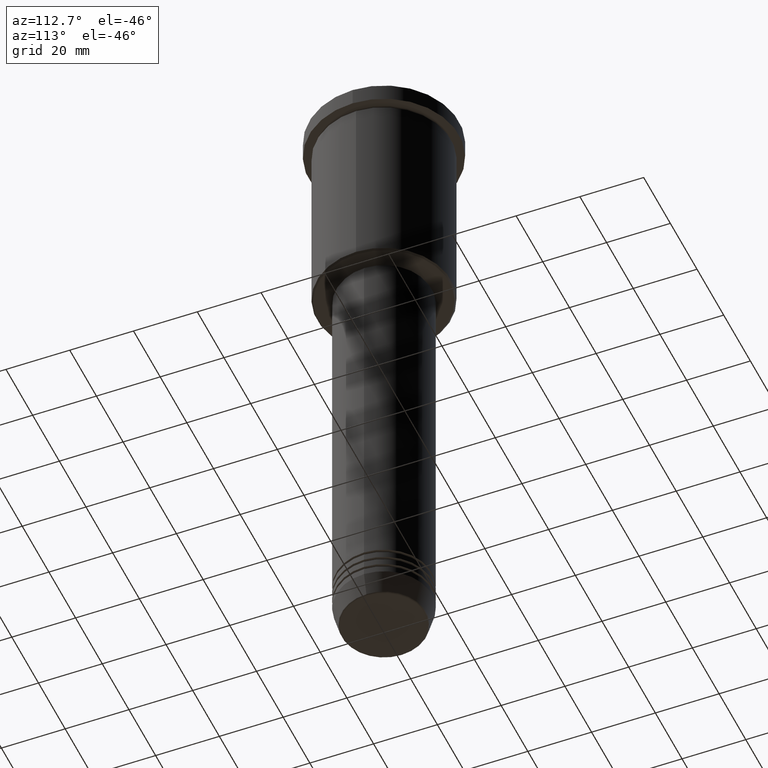
[diagram: clean part render]
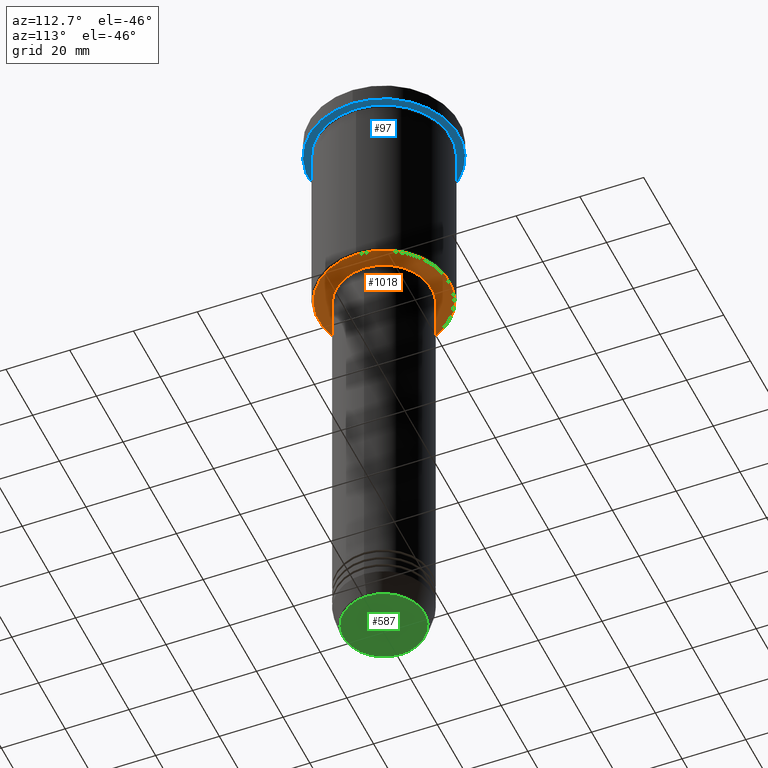
[diagram: same view with three faces highlighted in distinct colors, each labeled with its STEP entity id]
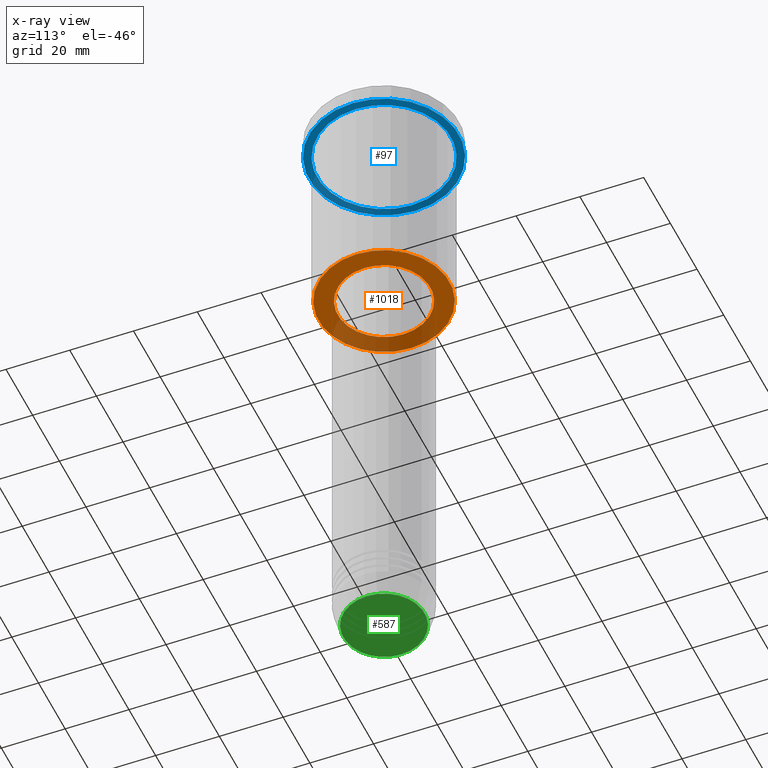
[diagram: x-ray of the same camera — body ghosted, the three highlighted faces saturated]
A machine part, auxiliary view with three faces highlighted in distinct colors.
The next image is the same camera in x-ray (body ghosted, the three faces saturated) — at least one of them is partly hidden behind the body in this view.
Their STEP definitions:

[orange] entity #1018 — the highlighted planar face has unit normal (0, 0, -1).
#48 = CIRCLE ( 'NONE', #907, 14.49999999999999822 ) ;
#68 = DIRECTION ( 'NONE',  ( 0.000000000000000000, 0.000000000000000000, -1.000000000000000000 ) ) ;
#74 = DIRECTION ( 'NONE',  ( 1.000000000000000000, 0.000000000000000000, 0.000000000000000000 ) ) ;
#82 = FACE_OUTER_BOUND ( 'NONE', #855, .T. ) ;
#87 = FACE_BOUND ( 'NONE', #1006, .T. ) ;
#143 = AXIS2_PLACEMENT_3D ( 'NONE', #1072, #900, #990 ) ;
#150 = EDGE_CURVE ( 'NONE', #1008, #1088, #508, .T. ) ;
#191 = DIRECTION ( 'NONE',  ( -0.000000000000000000, -0.000000000000000000, 1.000000000000000000 ) ) ;
#258 = CARTESIAN_POINT ( 'NONE',  ( 0.000000000000000000, 0.000000000000000000, -66.00000000000001421 ) ) ;
#271 = CARTESIAN_POINT ( 'NONE',  ( 20.49999999999996447, 0.000000000000000000, -66.00000000000001421 ) ) ;
#348 = DIRECTION ( 'NONE',  ( -1.000000000000000000, 0.000000000000000000, -0.000000000000000000 ) ) ;
#352 = PLANE ( 'NONE',  #1115 ) ;
#358 = ORIENTED_EDGE ( 'NONE', *, *, #462, .T. ) ;
#392 = ORIENTED_EDGE ( 'NONE', *, *, #1045, .T. ) ;
#417 = CIRCLE ( 'NONE', #143, 20.49999999999996447 ) ;
#462 = EDGE_CURVE ( 'NONE', #633, #1023, #961, .T. ) ;
#508 = CIRCLE ( 'NONE', #1050, 14.49999999999999822 ) ;
#538 = CARTESIAN_POINT ( 'NONE',  ( 0.000000000000000000, 0.000000000000000000, -66.00000000000001421 ) ) ;
#547 = CARTESIAN_POINT ( 'NONE',  ( -14.49999999999999822, 1.775737858763662015E-15, -66.00000000000001421 ) ) ;
#592 = EDGE_CURVE ( 'NONE', #1023, #633, #417, .T. ) ;
#633 = VERTEX_POINT ( 'NONE', #985 ) ;
#687 = DIRECTION ( 'NONE',  ( -1.000000000000000000, 0.000000000000000000, 0.000000000000000000 ) ) ;
#785 = ORIENTED_EDGE ( 'NONE', *, *, #150, .T. ) ;
#802 = CARTESIAN_POINT ( 'NONE',  ( 14.49999999999999822, 0.000000000000000000, -66.00000000000001421 ) ) ;
#855 = EDGE_LOOP ( 'NONE', ( #1103, #358 ) ) ;
#880 = CARTESIAN_POINT ( 'NONE',  ( 0.000000000000000000, 0.000000000000000000, -66.00000000000001421 ) ) ;
#883 = DIRECTION ( 'NONE',  ( 0.000000000000000000, 0.000000000000000000, -1.000000000000000000 ) ) ;
#900 = DIRECTION ( 'NONE',  ( 0.000000000000000000, 0.000000000000000000, -1.000000000000000000 ) ) ;
#907 = AXIS2_PLACEMENT_3D ( 'NONE', #258, #989, #74 ) ;
#961 = CIRCLE ( 'NONE', #1183, 20.49999999999996447 ) ;
#985 = CARTESIAN_POINT ( 'NONE',  ( -20.49999999999996447, 2.541142108230755902E-15, -66.00000000000001421 ) ) ;
#989 = DIRECTION ( 'NONE',  ( -0.000000000000000000, -0.000000000000000000, 1.000000000000000000 ) ) ;
#990 = DIRECTION ( 'NONE',  ( -1.000000000000000000, 0.000000000000000000, 0.000000000000000000 ) ) ;
#1006 = EDGE_LOOP ( 'NONE', ( #392, #785 ) ) ;
#1008 = VERTEX_POINT ( 'NONE', #547 ) ;
#1018 = ADVANCED_FACE ( 'NONE', ( #82, #87 ), #352, .T. ) ;
#1023 = VERTEX_POINT ( 'NONE', #271 ) ;
#1045 = EDGE_CURVE ( 'NONE', #1088, #1008, #48, .T. ) ;
#1050 = AXIS2_PLACEMENT_3D ( 'NONE', #538, #191, #1100 ) ;
#1072 = CARTESIAN_POINT ( 'NONE',  ( 0.000000000000000000, 0.000000000000000000, -66.00000000000001421 ) ) ;
#1088 = VERTEX_POINT ( 'NONE', #802 ) ;
#1100 = DIRECTION ( 'NONE',  ( 1.000000000000000000, 0.000000000000000000, 0.000000000000000000 ) ) ;
#1103 = ORIENTED_EDGE ( 'NONE', *, *, #592, .T. ) ;
#1115 = AXIS2_PLACEMENT_3D ( 'NONE', #1179, #68, #348 ) ;
#1179 = CARTESIAN_POINT ( 'NONE',  ( 0.000000000000000000, 21.00000000000000000, -66.00000000000001421 ) ) ;
#1183 = AXIS2_PLACEMENT_3D ( 'NONE', #880, #883, #687 ) ;

[blue] entity #97 — the highlighted planar face has unit normal (0, 0, -1).
#20 = ORIENTED_EDGE ( 'NONE', *, *, #73, .F. ) ;
#63 = AXIS2_PLACEMENT_3D ( 'NONE', #389, #373, #569 ) ;
#73 = EDGE_CURVE ( 'NONE', #548, #1116, #1110, .T. ) ;
#97 = ADVANCED_FACE ( 'NONE', ( #1174, #901 ), #1004, .T. ) ;
#98 = AXIS2_PLACEMENT_3D ( 'NONE', #908, #370, #1074 ) ;
#169 = DIRECTION ( 'NONE',  ( -1.000000000000000000, 0.000000000000000000, -0.000000000000000000 ) ) ;
#186 = CARTESIAN_POINT ( 'NONE',  ( 0.000000000000000000, 23.50000000000000000, -5.999999999999994671 ) ) ;
#204 = CARTESIAN_POINT ( 'NONE',  ( 0.000000000000000000, 0.000000000000000000, -5.999999999999994671 ) ) ;
#213 = EDGE_LOOP ( 'NONE', ( #987, #445 ) ) ;
#229 = AXIS2_PLACEMENT_3D ( 'NONE', #186, #454, #169 ) ;
#240 = VERTEX_POINT ( 'NONE', #479 ) ;
#268 = CIRCLE ( 'NONE', #63, 21.00000000000000000 ) ;
#303 = CIRCLE ( 'NONE', #658, 23.50000000000000000 ) ;
#307 = DIRECTION ( 'NONE',  ( -1.000000000000000000, 0.000000000000000000, 0.000000000000000000 ) ) ;
#318 = EDGE_CURVE ( 'NONE', #240, #330, #1165, .T. ) ;
#330 = VERTEX_POINT ( 'NONE', #836 ) ;
#370 = DIRECTION ( 'NONE',  ( -0.000000000000000000, -0.000000000000000000, 1.000000000000000000 ) ) ;
#373 = DIRECTION ( 'NONE',  ( -0.000000000000000000, -0.000000000000000000, 1.000000000000000000 ) ) ;
#389 = CARTESIAN_POINT ( 'NONE',  ( 0.000000000000000000, 0.000000000000000000, -5.999999999999994671 ) ) ;
#404 = DIRECTION ( 'NONE',  ( 1.000000000000000000, 0.000000000000000000, 0.000000000000000000 ) ) ;
#445 = ORIENTED_EDGE ( 'NONE', *, *, #318, .T. ) ;
#454 = DIRECTION ( 'NONE',  ( 0.000000000000000000, 0.000000000000000000, -1.000000000000000000 ) ) ;
#460 = DIRECTION ( 'NONE',  ( -0.000000000000000000, -0.000000000000000000, 1.000000000000000000 ) ) ;
#479 = CARTESIAN_POINT ( 'NONE',  ( 21.00000000000000000, 2.571758278209441661E-15, -5.999999999999994671 ) ) ;
#548 = VERTEX_POINT ( 'NONE', #619 ) ;
#569 = DIRECTION ( 'NONE',  ( -1.000000000000000000, 0.000000000000000000, 0.000000000000000000 ) ) ;
#588 = EDGE_LOOP ( 'NONE', ( #720, #20 ) ) ;
#619 = CARTESIAN_POINT ( 'NONE',  ( -23.50000000000000000, 2.877919977996280320E-15, -5.999999999999994671 ) ) ;
#658 = AXIS2_PLACEMENT_3D ( 'NONE', #835, #878, #404 ) ;
#700 = EDGE_CURVE ( 'NONE', #330, #240, #268, .T. ) ;
#720 = ORIENTED_EDGE ( 'NONE', *, *, #811, .F. ) ;
#811 = EDGE_CURVE ( 'NONE', #1116, #548, #303, .T. ) ;
#835 = CARTESIAN_POINT ( 'NONE',  ( 0.000000000000000000, 0.000000000000000000, -5.999999999999994671 ) ) ;
#836 = CARTESIAN_POINT ( 'NONE',  ( -21.00000000000000000, 0.000000000000000000, -5.999999999999994671 ) ) ;
#847 = AXIS2_PLACEMENT_3D ( 'NONE', #204, #460, #307 ) ;
#878 = DIRECTION ( 'NONE',  ( -0.000000000000000000, -0.000000000000000000, 1.000000000000000000 ) ) ;
#901 = FACE_OUTER_BOUND ( 'NONE', #588, .T. ) ;
#908 = CARTESIAN_POINT ( 'NONE',  ( 0.000000000000000000, 0.000000000000000000, -5.999999999999994671 ) ) ;
#934 = CARTESIAN_POINT ( 'NONE',  ( 23.50000000000000000, 0.000000000000000000, -5.999999999999994671 ) ) ;
#987 = ORIENTED_EDGE ( 'NONE', *, *, #700, .T. ) ;
#1004 = PLANE ( 'NONE',  #229 ) ;
#1074 = DIRECTION ( 'NONE',  ( 1.000000000000000000, 0.000000000000000000, 0.000000000000000000 ) ) ;
#1110 = CIRCLE ( 'NONE', #98, 23.50000000000000000 ) ;
#1116 = VERTEX_POINT ( 'NONE', #934 ) ;
#1165 = CIRCLE ( 'NONE', #847, 21.00000000000000000 ) ;
#1174 = FACE_BOUND ( 'NONE', #213, .T. ) ;

[green] entity #587 — the highlighted planar face has unit normal (0, -0, 1).
#115 = ORIENTED_EDGE ( 'NONE', *, *, #200, .T. ) ;
#147 = CARTESIAN_POINT ( 'NONE',  ( -12.74069215899266538, 1.589857736427681824E-15, -201.0000000000000000 ) ) ;
#172 = CARTESIAN_POINT ( 'NONE',  ( 0.000000000000000000, 0.000000000000000000, -201.0000000000000000 ) ) ;
#194 = AXIS2_PLACEMENT_3D ( 'NONE', #520, #1093, #1163 ) ;
#200 = EDGE_CURVE ( 'NONE', #951, #1096, #808, .T. ) ;
#360 = FACE_OUTER_BOUND ( 'NONE', #762, .T. ) ;
#400 = AXIS2_PLACEMENT_3D ( 'NONE', #545, #914, #1095 ) ;
#477 = CIRCLE ( 'NONE', #580, 12.74069215899266538 ) ;
#520 = CARTESIAN_POINT ( 'NONE',  ( 0.000000000000000000, 0.000000000000000000, -201.0000000000000000 ) ) ;
#533 = DIRECTION ( 'NONE',  ( 1.000000000000000000, 0.000000000000000000, 0.000000000000000000 ) ) ;
#545 = CARTESIAN_POINT ( 'NONE',  ( 0.000000000000000000, 0.000000000000000000, -201.0000000000000000 ) ) ;
#580 = AXIS2_PLACEMENT_3D ( 'NONE', #172, #625, #533 ) ;
#587 = ADVANCED_FACE ( 'NONE', ( #360 ), #917, .F. ) ;
#625 = DIRECTION ( 'NONE',  ( 0.000000000000000000, 0.000000000000000000, -1.000000000000000000 ) ) ;
#718 = ORIENTED_EDGE ( 'NONE', *, *, #1063, .T. ) ;
#762 = EDGE_LOOP ( 'NONE', ( #718, #115 ) ) ;
#808 = CIRCLE ( 'NONE', #400, 12.74069215899266538 ) ;
#914 = DIRECTION ( 'NONE',  ( 0.000000000000000000, 0.000000000000000000, -1.000000000000000000 ) ) ;
#917 = PLANE ( 'NONE',  #194 ) ;
#951 = VERTEX_POINT ( 'NONE', #147 ) ;
#1063 = EDGE_CURVE ( 'NONE', #1096, #951, #477, .T. ) ;
#1093 = DIRECTION ( 'NONE',  ( 0.000000000000000000, -0.000000000000000000, 1.000000000000000000 ) ) ;
#1095 = DIRECTION ( 'NONE',  ( 1.000000000000000000, 0.000000000000000000, 0.000000000000000000 ) ) ;
#1096 = VERTEX_POINT ( 'NONE', #1156 ) ;
#1156 = CARTESIAN_POINT ( 'NONE',  ( 12.74069215899266538, 0.000000000000000000, -201.0000000000000000 ) ) ;
#1163 = DIRECTION ( 'NONE',  ( 1.000000000000000000, 0.000000000000000000, 0.000000000000000000 ) ) ;